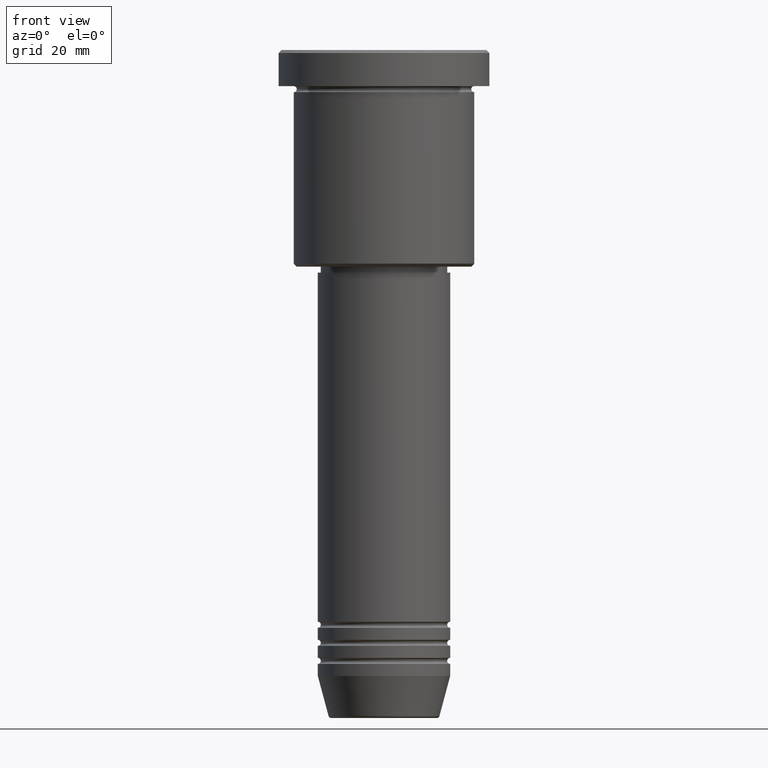
[diagram: clean part render]
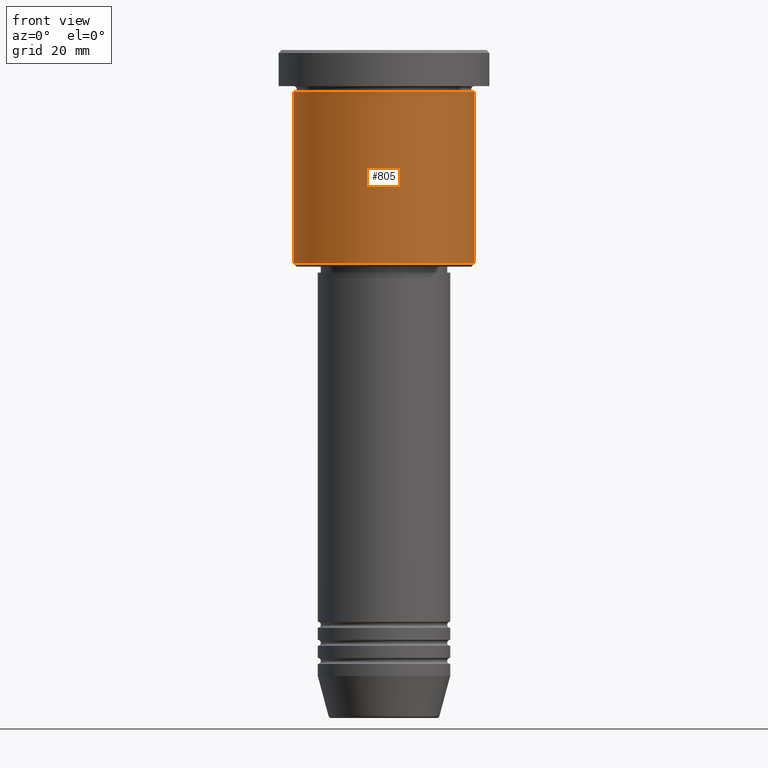
[diagram: same view with one face highlighted and labeled with its STEP entity id]
A machine part, front view. The second image highlights one B-rep face of the part: STEP entity #805.
In plain terms, the highlighted cylindrical surface (partial cylindrical patch) has radius 15 mm, axis along (-0, -0, 1).
Its self-contained STEP definition (entity closure, byte-faithful):
#30 = CARTESIAN_POINT ( 'NONE',  ( 15.00000000000000000, 0.000000000000000000, -6.999999999999995559 ) ) ;
#55 = DIRECTION ( 'NONE',  ( -1.000000000000000000, 0.000000000000000000, 0.000000000000000000 ) ) ;
#68 = CARTESIAN_POINT ( 'NONE',  ( 0.000000000000000000, 0.000000000000000000, 0.000000000000000000 ) ) ;
#113 = CARTESIAN_POINT ( 'NONE',  ( 0.000000000000000000, 0.000000000000000000, -6.999999999999995559 ) ) ;
#143 = FACE_OUTER_BOUND ( 'NONE', #961, .T. ) ;
#191 = VERTEX_POINT ( 'NONE', #30 ) ;
#239 = CARTESIAN_POINT ( 'NONE',  ( 0.000000000000000000, 0.000000000000000000, -35.50000000000000711 ) ) ;
#285 = LINE ( 'NONE', #802, #574 ) ;
#289 = DIRECTION ( 'NONE',  ( 1.000000000000000000, 0.000000000000000000, 0.000000000000000000 ) ) ;
#333 = CARTESIAN_POINT ( 'NONE',  ( 15.00000000000000000, 0.000000000000000000, 0.000000000000000000 ) ) ;
#337 = ORIENTED_EDGE ( 'NONE', *, *, #897, .T. ) ;
#338 = DIRECTION ( 'NONE',  ( -0.000000000000000000, -0.000000000000000000, 1.000000000000000000 ) ) ;
#376 = DIRECTION ( 'NONE',  ( -0.000000000000000000, -0.000000000000000000, 1.000000000000000000 ) ) ;
#430 = VERTEX_POINT ( 'NONE', #994 ) ;
#440 = VERTEX_POINT ( 'NONE', #703 ) ;
#486 = DIRECTION ( 'NONE',  ( 1.000000000000000000, 0.000000000000000000, 0.000000000000000000 ) ) ;
#493 = DIRECTION ( 'NONE',  ( -0.000000000000000000, -0.000000000000000000, 1.000000000000000000 ) ) ;
#556 = EDGE_CURVE ( 'NONE', #615, #440, #285, .T. ) ;
#573 = AXIS2_PLACEMENT_3D ( 'NONE', #113, #376, #289 ) ;
#574 = VECTOR ( 'NONE', #338, 1000.000000000000000 ) ;
#615 = VERTEX_POINT ( 'NONE', #843 ) ;
#656 = CIRCLE ( 'NONE', #658, 15.00000000000000000 ) ;
#658 = AXIS2_PLACEMENT_3D ( 'NONE', #239, #493, #55 ) ;
#670 = LINE ( 'NONE', #333, #1056 ) ;
#681 = CYLINDRICAL_SURFACE ( 'NONE', #1037, 15.00000000000000000 ) ;
#703 = CARTESIAN_POINT ( 'NONE',  ( -15.00000000000000000, 1.836970198721029589E-15, -6.999999999999995559 ) ) ;
#785 = ORIENTED_EDGE ( 'NONE', *, *, #1111, .F. ) ;
#791 = DIRECTION ( 'NONE',  ( -0.000000000000000000, -0.000000000000000000, 1.000000000000000000 ) ) ;
#802 = CARTESIAN_POINT ( 'NONE',  ( -15.00000000000000000, 1.836970198721029589E-15, 0.000000000000000000 ) ) ;
#805 = ADVANCED_FACE ( 'NONE', ( #143 ), #681, .T. ) ;
#822 = EDGE_CURVE ( 'NONE', #615, #430, #656, .T. ) ;
#843 = CARTESIAN_POINT ( 'NONE',  ( -15.00000000000000000, 1.836970198721029589E-15, -35.50000000000000711 ) ) ;
#897 = EDGE_CURVE ( 'NONE', #430, #191, #670, .T. ) ;
#961 = EDGE_LOOP ( 'NONE', ( #1176, #969, #337, #785 ) ) ;
#969 = ORIENTED_EDGE ( 'NONE', *, *, #822, .T. ) ;
#994 = CARTESIAN_POINT ( 'NONE',  ( 15.00000000000000000, 0.000000000000000000, -35.50000000000000711 ) ) ;
#1037 = AXIS2_PLACEMENT_3D ( 'NONE', #68, #791, #486 ) ;
#1046 = CIRCLE ( 'NONE', #573, 15.00000000000000000 ) ;
#1049 = DIRECTION ( 'NONE',  ( -0.000000000000000000, -0.000000000000000000, 1.000000000000000000 ) ) ;
#1056 = VECTOR ( 'NONE', #1049, 1000.000000000000000 ) ;
#1111 = EDGE_CURVE ( 'NONE', #440, #191, #1046, .T. ) ;
#1176 = ORIENTED_EDGE ( 'NONE', *, *, #556, .F. ) ;